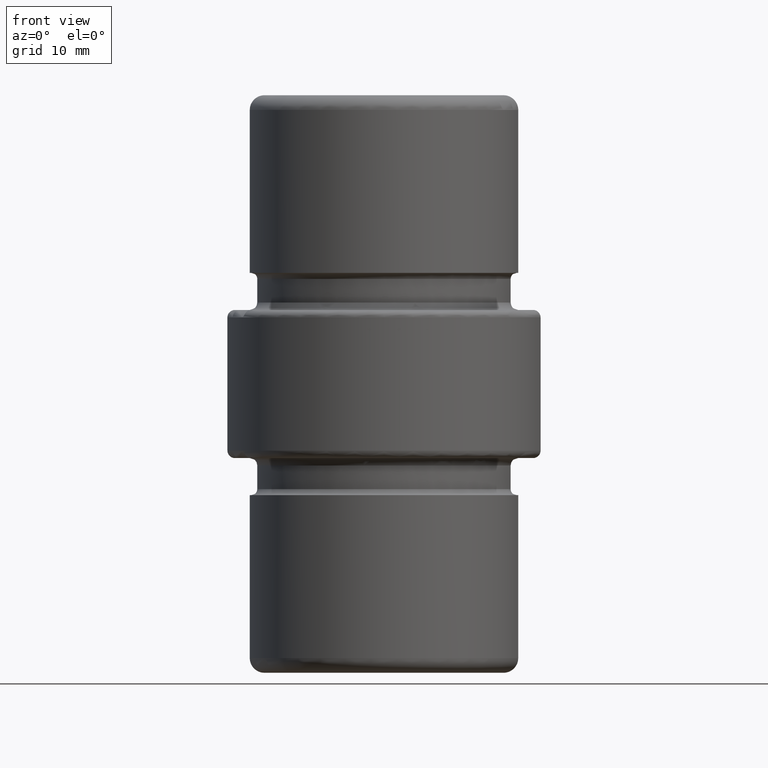
[diagram: clean part render]
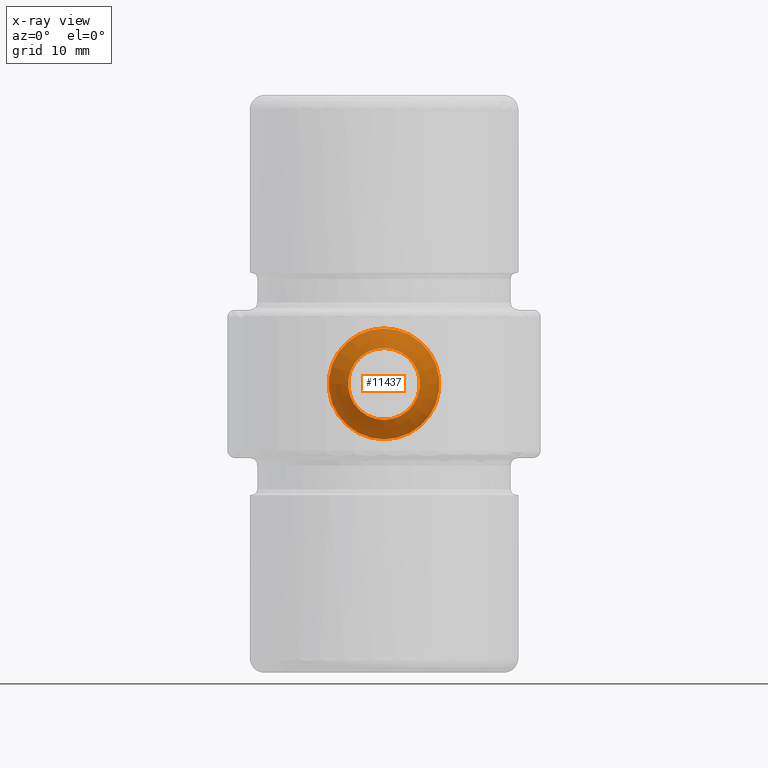
[diagram: x-ray — body ghosted, one internal face saturated and labeled with its STEP entity id]
A machine part, front view, then the same camera in x-ray: the body is ghosted and one INTERNAL B-rep face — a face not visible from any outside direction — is saturated and labeled: STEP entity #11437.
In plain terms, the highlighted toroidal blend (fillet) surface has major radius 2.5 mm and minor (blend) radius 5 mm.
Its self-contained STEP definition (entity closure, byte-faithful):
#255 = ORIENTED_EDGE ( 'NONE', *, *, #4906, .F. ) ;
#900 = DIRECTION ( 'NONE',  ( 0.000000000000000000, 0.000000000000000000, -1.000000000000000000 ) ) ;
#1674 = CARTESIAN_POINT ( 'NONE',  ( 0.000000000000000000, 0.0009612759378401294907, 0.000000000000000000 ) ) ;
#1804 = TOROIDAL_SURFACE ( 'NONE', #5923, 2.499999999999987566, 5.000000000000000000 ) ;
#1822 = DIRECTION ( 'NONE',  ( -0.000000000000000000, -1.000000000000000000, -0.000000000000000000 ) ) ;
#3569 = DIRECTION ( 'NONE',  ( 0.000000000000000000, 0.000000000000000000, -1.000000000000000000 ) ) ;
#4477 = DIRECTION ( 'NONE',  ( -0.000000000000000000, -1.000000000000000000, -0.000000000000000000 ) ) ;
#4683 = AXIS2_PLACEMENT_3D ( 'NONE', #7276, #1822, #8198 ) ;
#4906 = EDGE_CURVE ( 'NONE', #7935, #7935, #9806, .T. ) ;
#5312 = ORIENTED_EDGE ( 'NONE', *, *, #9865, .T. ) ;
#5348 = EDGE_LOOP ( 'NONE', ( #5312 ) ) ;
#5496 = FACE_OUTER_BOUND ( 'NONE', #7293, .T. ) ;
#5923 = AXIS2_PLACEMENT_3D ( 'NONE', #1674, #4477, #3569 ) ;
#5975 = AXIS2_PLACEMENT_3D ( 'NONE', #8237, #6358, #900 ) ;
#6358 = DIRECTION ( 'NONE',  ( -0.000000000000000000, -1.000000000000000000, -0.000000000000000000 ) ) ;
#6855 = CARTESIAN_POINT ( 'NONE',  ( 0.000000000000000000, 4.415699240232489942, -4.847357813929416004 ) ) ;
#7276 = CARTESIAN_POINT ( 'NONE',  ( 0.000000000000000000, 0.4546328432670764808, 0.000000000000000000 ) ) ;
#7293 = EDGE_LOOP ( 'NONE', ( #255 ) ) ;
#7623 = CARTESIAN_POINT ( 'NONE',  ( 0.000000000000000000, 0.4546328432670764808, -7.479375674619952896 ) ) ;
#7723 = CIRCLE ( 'NONE', #4683, 7.479375674619952896 ) ;
#7935 = VERTEX_POINT ( 'NONE', #6855 ) ;
#8198 = DIRECTION ( 'NONE',  ( 0.000000000000000000, 0.000000000000000000, -1.000000000000000000 ) ) ;
#8237 = CARTESIAN_POINT ( 'NONE',  ( 0.000000000000000000, 4.415699240232489942, 0.000000000000000000 ) ) ;
#9806 = CIRCLE ( 'NONE', #5975, 4.847357813929416004 ) ;
#9865 = EDGE_CURVE ( 'NONE', #11237, #11237, #7723, .T. ) ;
#11092 = FACE_OUTER_BOUND ( 'NONE', #5348, .T. ) ;
#11237 = VERTEX_POINT ( 'NONE', #7623 ) ;
#11437 = ADVANCED_FACE ( 'NONE', ( #11092, #5496 ), #1804, .F. ) ;